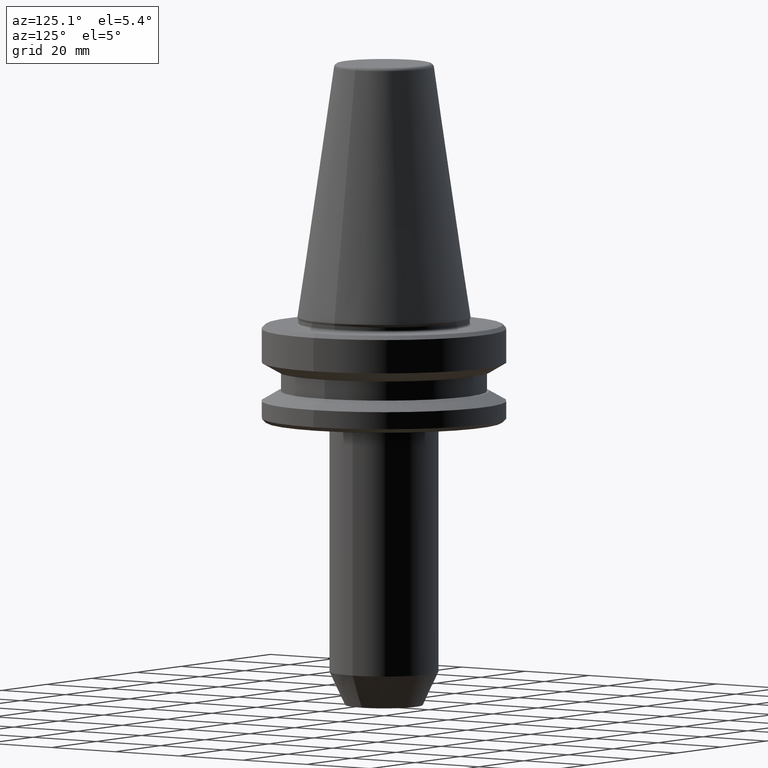
[diagram: clean part render]
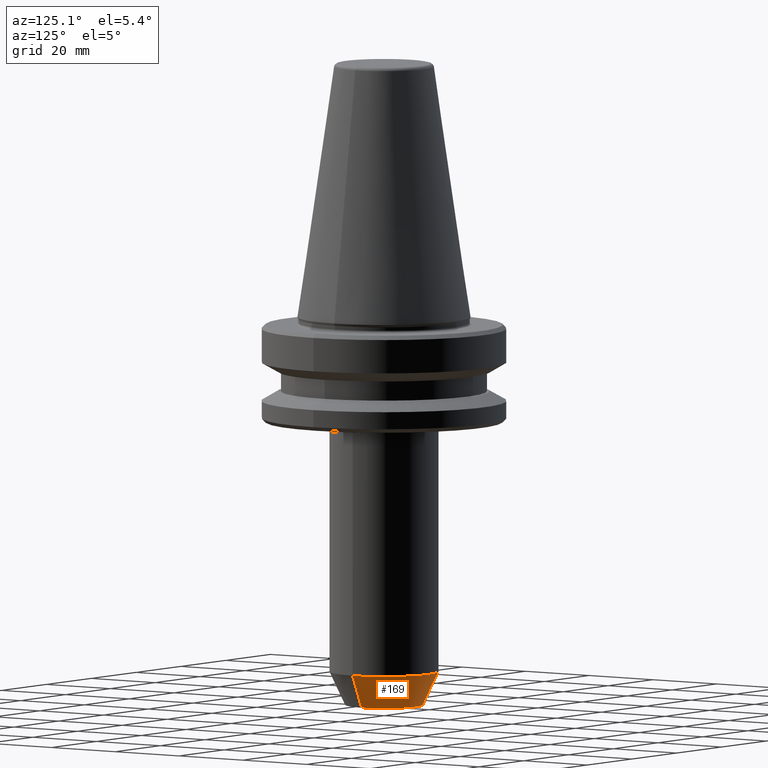
[diagram: same view with one face highlighted and labeled with its STEP entity id]
A machine part, auxiliary view. The second image highlights one B-rep face of the part: STEP entity #169.
In plain terms, the highlighted conical surface has half-angle 25 deg.
Its self-contained STEP definition (entity closure, byte-faithful):
#16 = CARTESIAN_POINT ( 'NONE',  ( 0.0000000000000000000, 0.0000000000000000000, -100.0000000000995600 ) ) ;
#45 = ORIENTED_EDGE ( 'NONE', *, *, #196, .F. ) ;
#72 = CARTESIAN_POINT ( 'NONE',  ( 13.99999999999840300, 0.0000000000000000000, -91.42197231806147800 ) ) ;
#89 = DIRECTION ( 'NONE',  ( -0.4226182617407059900, 5.175581015019738900E-017, 0.9063077870366469400 ) ) ;
#123 = DIRECTION ( 'NONE',  ( -0.0000000000000000000, -0.0000000000000000000, 1.000000000000000000 ) ) ;
#130 = CARTESIAN_POINT ( 'NONE',  ( 9.999999999998399500, 0.0000000000000000000, -100.0000000000995600 ) ) ;
#131 = CARTESIAN_POINT ( 'NONE',  ( 0.0000000000000000000, 0.0000000000000000000, -91.42197231806147800 ) ) ;
#157 = VECTOR ( 'NONE', #759, 1000.000000000000000 ) ;
#169 = ADVANCED_FACE ( 'NONE', ( #508 ), #210, .T. ) ;
#183 = EDGE_CURVE ( 'NONE', #532, #810, #312, .T. ) ;
#196 = EDGE_CURVE ( 'NONE', #532, #644, #425, .T. ) ;
#208 = LINE ( 'NONE', #641, #761 ) ;
#210 = CONICAL_SURFACE ( 'NONE', #900, 9.999999999998399500, 0.4363323129985896000 ) ;
#227 = DIRECTION ( 'NONE',  ( 1.000000000000000000, 0.0000000000000000000, 0.0000000000000000000 ) ) ;
#299 = CARTESIAN_POINT ( 'NONE',  ( 0.0000000000000000000, 0.0000000000000000000, -100.0000000000995600 ) ) ;
#304 = DIRECTION ( 'NONE',  ( 1.000000000000000000, 0.0000000000000000000, 0.0000000000000000000 ) ) ;
#312 = CIRCLE ( 'NONE', #576, 9.999999999998399500 ) ;
#392 = VERTEX_POINT ( 'NONE', #660 ) ;
#400 = AXIS2_PLACEMENT_3D ( 'NONE', #131, #123, #304 ) ;
#420 = ORIENTED_EDGE ( 'NONE', *, *, #478, .F. ) ;
#425 = LINE ( 'NONE', #775, #157 ) ;
#478 = EDGE_CURVE ( 'NONE', #644, #392, #560, .T. ) ;
#508 = FACE_OUTER_BOUND ( 'NONE', #967, .T. ) ;
#532 = VERTEX_POINT ( 'NONE', #130 ) ;
#560 = CIRCLE ( 'NONE', #400, 13.99999999999840300 ) ;
#576 = AXIS2_PLACEMENT_3D ( 'NONE', #299, #859, #227 ) ;
#587 = DIRECTION ( 'NONE',  ( -0.0000000000000000000, -0.0000000000000000000, 1.000000000000000000 ) ) ;
#601 = DIRECTION ( 'NONE',  ( 1.000000000000000000, 0.0000000000000000000, 0.0000000000000000000 ) ) ;
#631 = EDGE_CURVE ( 'NONE', #810, #392, #208, .T. ) ;
#641 = CARTESIAN_POINT ( 'NONE',  ( -9.999999999998399500, 1.224646799147157200E-015, -100.0000000000995600 ) ) ;
#644 = VERTEX_POINT ( 'NONE', #72 ) ;
#660 = CARTESIAN_POINT ( 'NONE',  ( -13.99999999999840300, 1.714505518806098800E-015, -91.42197231806147800 ) ) ;
#759 = DIRECTION ( 'NONE',  ( 0.4226182617407059900, 0.0000000000000000000, 0.9063077870366469400 ) ) ;
#761 = VECTOR ( 'NONE', #89, 1000.000000000000000 ) ;
#775 = CARTESIAN_POINT ( 'NONE',  ( 9.999999999998399500, 0.0000000000000000000, -100.0000000000995600 ) ) ;
#810 = VERTEX_POINT ( 'NONE', #947 ) ;
#859 = DIRECTION ( 'NONE',  ( -0.0000000000000000000, -0.0000000000000000000, 1.000000000000000000 ) ) ;
#900 = AXIS2_PLACEMENT_3D ( 'NONE', #16, #587, #601 ) ;
#903 = ORIENTED_EDGE ( 'NONE', *, *, #183, .T. ) ;
#947 = CARTESIAN_POINT ( 'NONE',  ( -9.999999999998399500, 1.469576158976627900E-015, -100.0000000000995600 ) ) ;
#958 = ORIENTED_EDGE ( 'NONE', *, *, #631, .T. ) ;
#967 = EDGE_LOOP ( 'NONE', ( #903, #958, #420, #45 ) ) ;